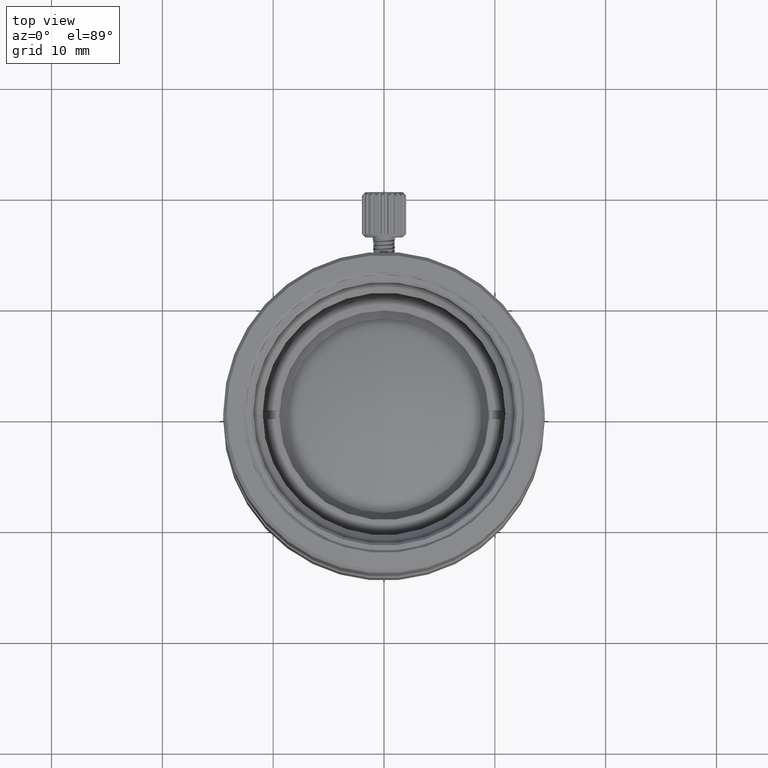
[diagram: clean part render]
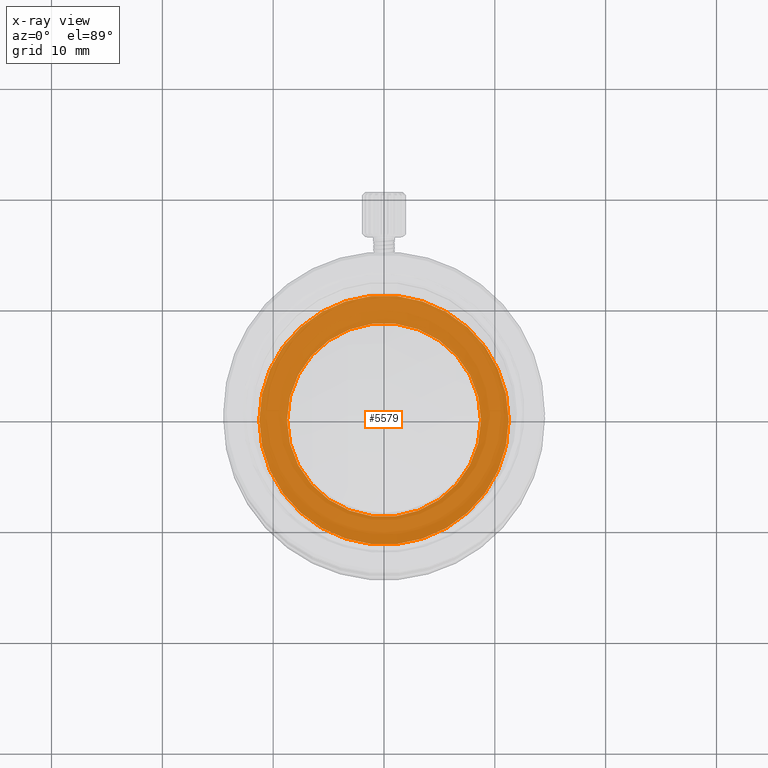
[diagram: x-ray — body ghosted, one internal face saturated and labeled with its STEP entity id]
A machine part, top view, then the same camera in x-ray: the body is ghosted and one INTERNAL B-rep face — a face not visible from any outside direction — is saturated and labeled: STEP entity #5579.
In plain terms, the highlighted planar face has unit normal (0, 0, 1).
Its self-contained STEP definition (entity closure, byte-faithful):
#2461 = AXIS2_PLACEMENT_3D ( 'NONE', #28823, #41058, #29074 ) ;
#3022 = CIRCLE ( 'NONE', #6214, 8.750000000000000000 ) ;
#3155 = FACE_BOUND ( 'NONE', #6809, .T. ) ;
#3359 = DIRECTION ( 'NONE',  ( 0.000000000000000000, 0.000000000000000000, 1.000000000000000000 ) ) ;
#4020 = VERTEX_POINT ( 'NONE', #28667 ) ;
#4405 = CIRCLE ( 'NONE', #41844, 8.750000000000000000 ) ;
#5394 = DIRECTION ( 'NONE',  ( 1.000000000000000000, 0.000000000000000000, 0.000000000000000000 ) ) ;
#5579 = ADVANCED_FACE ( 'NONE', ( #3155, #14386 ), #37552, .F. ) ;
#6214 = AXIS2_PLACEMENT_3D ( 'NONE', #18100, #3359, #10598 ) ;
#6216 = ORIENTED_EDGE ( 'NONE', *, *, #21901, .F. ) ;
#6809 = EDGE_LOOP ( 'NONE', ( #7342, #16729 ) ) ;
#7342 = ORIENTED_EDGE ( 'NONE', *, *, #32960, .T. ) ;
#7382 = AXIS2_PLACEMENT_3D ( 'NONE', #48984, #19567, #44996 ) ;
#9951 = CIRCLE ( 'NONE', #28241, 11.25000000000000000 ) ;
#10598 = DIRECTION ( 'NONE',  ( 1.000000000000000000, 0.000000000000000000, 0.000000000000000000 ) ) ;
#11958 = CARTESIAN_POINT ( 'NONE',  ( -8.750000000000000000, 0.000000000000000000, -0.2275297118139990027 ) ) ;
#12792 = VERTEX_POINT ( 'NONE', #45015 ) ;
#14260 = EDGE_CURVE ( 'NONE', #4020, #41378, #9951, .T. ) ;
#14386 = FACE_OUTER_BOUND ( 'NONE', #28968, .T. ) ;
#16729 = ORIENTED_EDGE ( 'NONE', *, *, #25829, .T. ) ;
#18100 = CARTESIAN_POINT ( 'NONE',  ( 0.000000000000000000, 0.000000000000000000, -0.2275297118139990027 ) ) ;
#19567 = DIRECTION ( 'NONE',  ( 0.000000000000000000, 0.000000000000000000, 1.000000000000000000 ) ) ;
#19608 = CARTESIAN_POINT ( 'NONE',  ( 0.000000000000000000, 0.000000000000000000, -0.2275297118139990027 ) ) ;
#21901 = EDGE_CURVE ( 'NONE', #41378, #4020, #26496, .T. ) ;
#24332 = DIRECTION ( 'NONE',  ( 0.000000000000000000, 0.000000000000000000, 1.000000000000000000 ) ) ;
#25829 = EDGE_CURVE ( 'NONE', #12792, #38126, #4405, .T. ) ;
#26496 = CIRCLE ( 'NONE', #7382, 11.25000000000000000 ) ;
#28241 = AXIS2_PLACEMENT_3D ( 'NONE', #19608, #31062, #34320 ) ;
#28667 = CARTESIAN_POINT ( 'NONE',  ( 11.25000000000000000, 1.377727649040772389E-15, -0.2275297118139990027 ) ) ;
#28823 = CARTESIAN_POINT ( 'NONE',  ( 0.000000000000000000, 0.000000000000000000, -0.2275297118139990027 ) ) ;
#28968 = EDGE_LOOP ( 'NONE', ( #6216, #42057 ) ) ;
#29074 = DIRECTION ( 'NONE',  ( 1.000000000000000000, 0.000000000000000000, 0.000000000000000000 ) ) ;
#31062 = DIRECTION ( 'NONE',  ( 0.000000000000000000, 0.000000000000000000, 1.000000000000000000 ) ) ;
#32960 = EDGE_CURVE ( 'NONE', #38126, #12792, #3022, .T. ) ;
#34320 = DIRECTION ( 'NONE',  ( 1.000000000000000000, 0.000000000000000000, 0.000000000000000000 ) ) ;
#35795 = CARTESIAN_POINT ( 'NONE',  ( 0.000000000000000000, 0.000000000000000000, -0.2275297118139990027 ) ) ;
#37552 = PLANE ( 'NONE',  #2461 ) ;
#38126 = VERTEX_POINT ( 'NONE', #11958 ) ;
#41058 = DIRECTION ( 'NONE',  ( 0.000000000000000000, 0.000000000000000000, 1.000000000000000000 ) ) ;
#41378 = VERTEX_POINT ( 'NONE', #45936 ) ;
#41844 = AXIS2_PLACEMENT_3D ( 'NONE', #35795, #24332, #5394 ) ;
#42057 = ORIENTED_EDGE ( 'NONE', *, *, #14260, .F. ) ;
#44996 = DIRECTION ( 'NONE',  ( 1.000000000000000000, 0.000000000000000000, 0.000000000000000000 ) ) ;
#45015 = CARTESIAN_POINT ( 'NONE',  ( 8.750000000000000000, 1.071565949253934124E-15, -0.2275297118139990027 ) ) ;
#45936 = CARTESIAN_POINT ( 'NONE',  ( -11.25000000000000000, 0.000000000000000000, -0.2275297118139990027 ) ) ;
#48984 = CARTESIAN_POINT ( 'NONE',  ( 0.000000000000000000, 0.000000000000000000, -0.2275297118139990027 ) ) ;